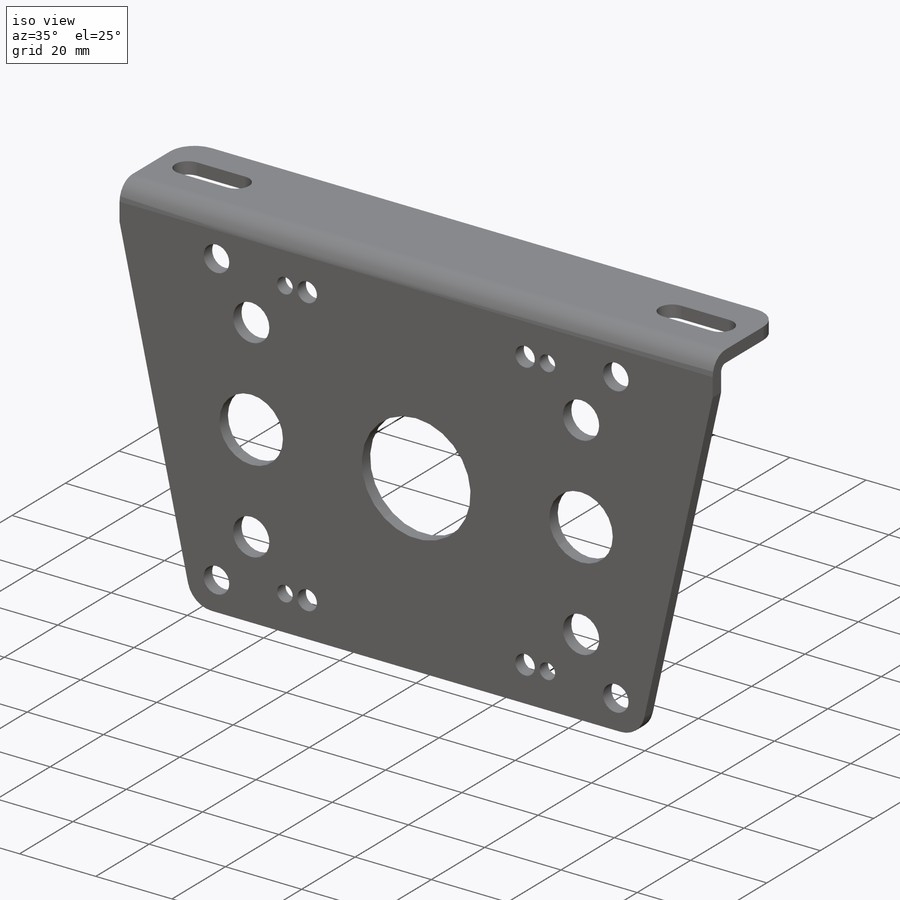
[diagram: iso view]
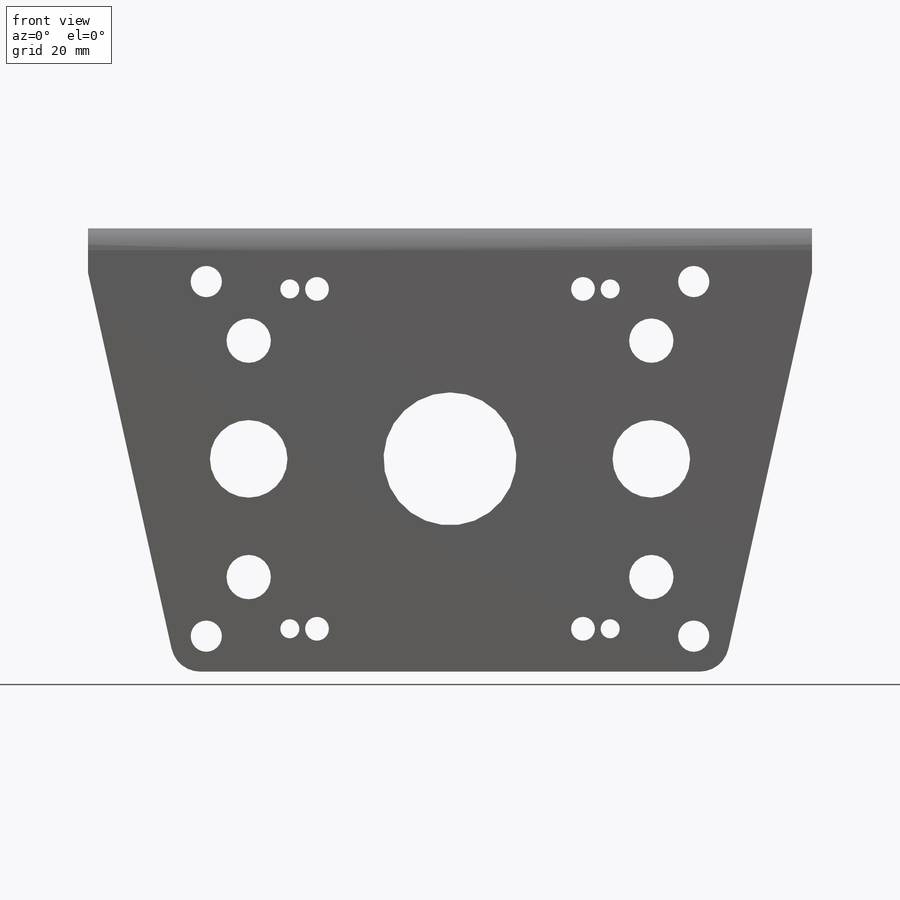
[diagram: front view]
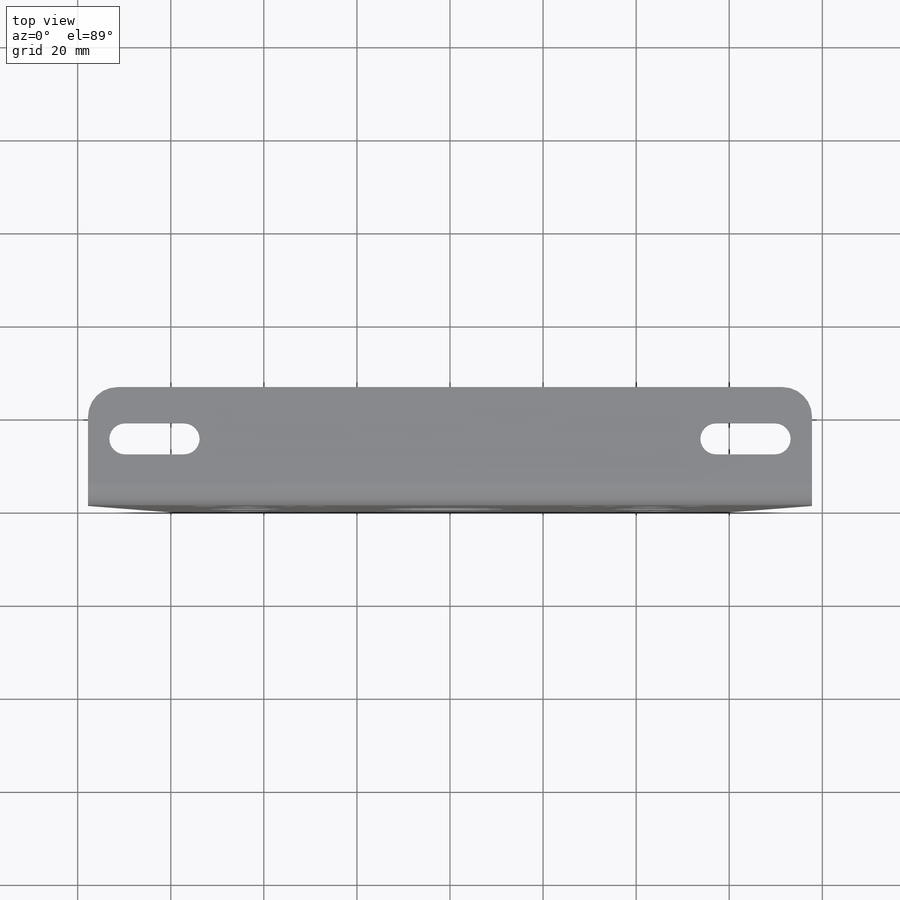
[diagram: top view]
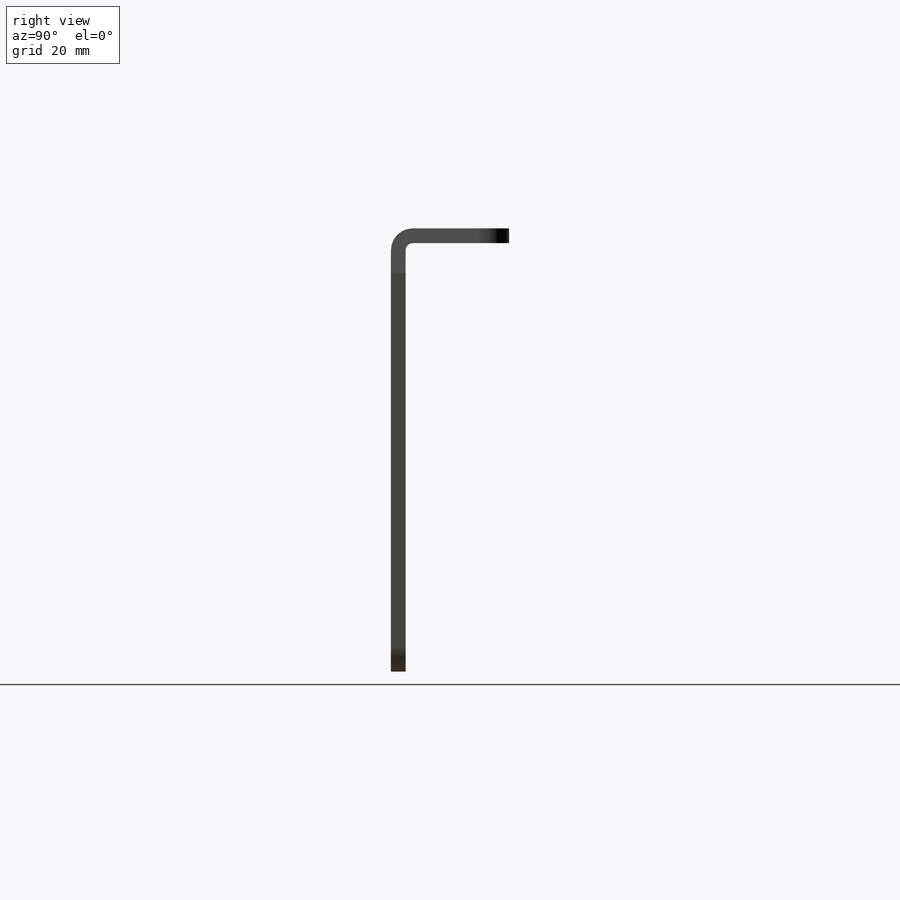
[diagram: right view]
SOLIDWORKS PART (.sldprt)
format: sldprt  version: not decoded by parser v0  size: 351,232 bytes
history: native  units: mm
features: sketch x9, cut_extrude x4, mirror x2, material x1, extrude x1, fillet x1, sheet_metal_op x1 + 1 further entry (+16 scaffold rows collapsed; 1 parser-record rows omitted)
feature tree (37):
  scaffold x16  (default folders/planes/origin — collapsed)
  material  "6061 Alloy"
  sketch  "Sketch1"  dims[c1.D6=6.35mm c1.D1=~70.41896mm c1.D2=155.575mm c1.D3=~82.722371mm c2.D3=~77.471192deg c2.D4=~30.414533mm c2.D5=~116.139533mm]
  extrude  "Extrude1"  Depth=3.175mm Thickness=3.175mm
  fillet  "Fillet1"  Radius=6.35mm
  sketch  "Sketch2"  dims[c1.D1=3.3528mm c1.D4=3.3528mm c1.D2=12.7mm c1.D3=7.7597mm c2.D4=7.9375mm]
  cut_extrude  "Extrude2"  [1 undecoded]
  sketch  "Sketch3"  dims[D1=28.5623mm D2=16.6624mm D3=43.2562mm]
  cut_extrude  "Extrude3"  [1 undecoded]
  sketch  "Sketch4"  dims[c1.D1=~6.831268mm c1.D2=~6.831268mm c1.D3=6.7056mm c2.D1=~52.36972mm c2.D2=38.1mm]
  cut_extrude  "Extrude4"  [1 undecoded]
  sketch  "Sketch8"  dims[D1=9.525mm D2=43.2562mm D3=25.4mm]
  sketch  "Sketch9"  dims[c1.D1=5.1054mm c1.D2=4.0894mm c1.D3=4.0894mm c1.D4=5.1054mm c2.D3=5.842mm c2.D4=36.5125mm c2.D5=28.575mm]
  cut_extrude  "Extrude5"  [1 undecoded]
  mirror  "Mirror1"
  mirror  "Mirror2"
  sheet_metal_op  "Sheet-Metal1"
  sketch  "Sketch13"  dims[D1=~23.14448mm D2=500.0mm D3=0.0mm]
  sketch  "Sketch15"  dims[c1.D1=~23.14448mm c2.D1=1.524mm c2.D2=500.0mm c2.D3=0.0mm c2.D4=90.0deg c2.D5=1.0 c2.D8=1.5875mm c2.D9=1.5875mm c3.D1=0.0mm]
  "Flat-Pattern1"
  sketch  "Sketch17"
  parser-record x1  (decoder bookkeeping rows leaked as tree rows — omitted from the tree; the rows remain in map.json)
decode coverage: 10 of 18 modeling features carry decoded parameters; 1 rows unclassified (native names shown)
note: ~ marks probable driven/reference dimensions
note: 4 parameter values undecoded
summary: no parameter record found for 4 features
note: suppression state not decoded; provenance and decode notes live in map.json
